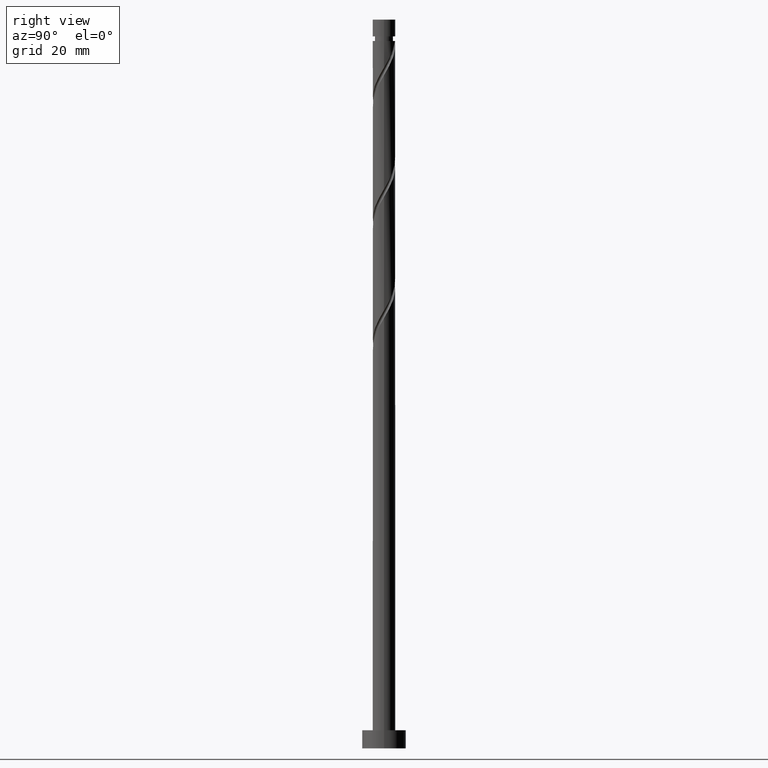
[diagram: clean part render]
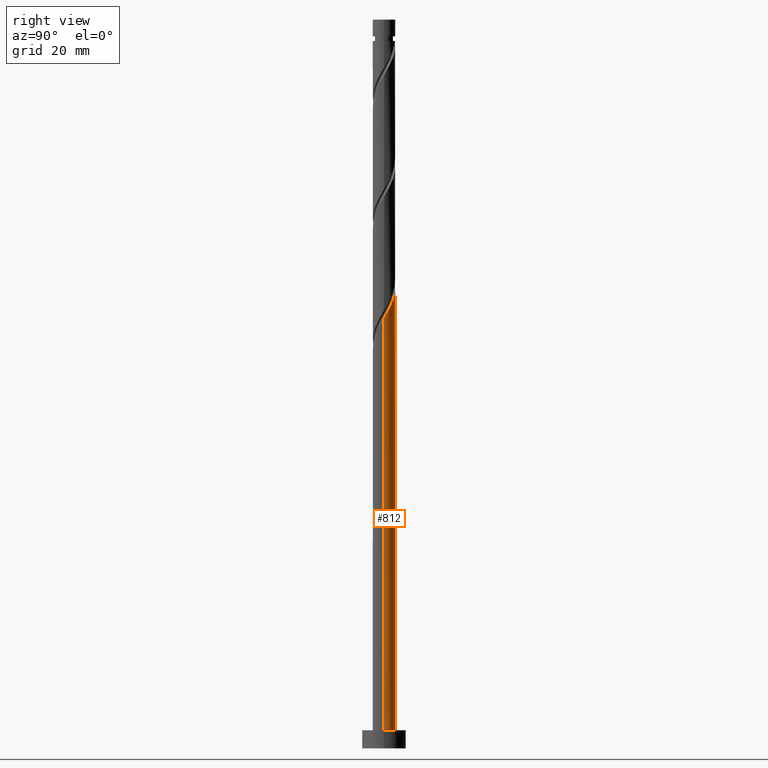
[diagram: same view with one face highlighted and labeled with its STEP entity id]
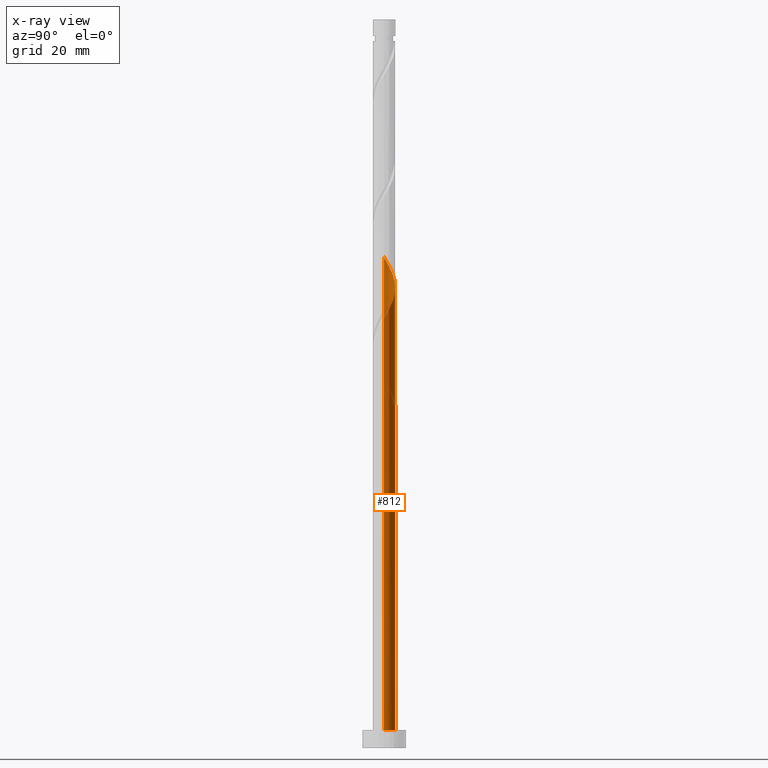
[diagram: x-ray of the same camera — body ghosted, the highlighted face saturated]
A machine part, right view. The second image highlights one B-rep face of the part: STEP entity #812.
The next image is the same camera in x-ray: the body ghosted, the highlighted face saturated — about 0% of this face is hidden behind the body in this view.
In plain terms, the highlighted cylindrical surface (edge-blend (fillet) strip) has radius 3.1 mm, axis along (-0, -0, -1).
Its self-contained STEP definition (entity closure, byte-faithful):
#6 = CARTESIAN_POINT ( 'NONE',  ( 0.000000000000000000, 0.000000000000000000, 94.13894917017734087 ) ) ;
#25 = CARTESIAN_POINT ( 'NONE',  ( 2.322539071194076765, 2.053244326128037311, 121.9167269479550839 ) ) ;
#42 = ORIENTED_EDGE ( 'NONE', *, *, #212, .F. ) ;
#49 = DIRECTION ( 'NONE',  ( 1.000000000000000000, 0.000000000000000000, 0.000000000000000000 ) ) ;
#78 = CARTESIAN_POINT ( 'NONE',  ( -2.939431282200180906, 0.9847556738719646097, 133.0278380590661982 ) ) ;
#86 = CARTESIAN_POINT ( 'NONE',  ( -2.939431282200180906, 0.9847556738719646097, 99.69450472573285538 ) ) ;
#133 = EDGE_CURVE ( 'NONE', #692, #371, #1568, .T. ) ;
#156 = CARTESIAN_POINT ( 'NONE',  ( -2.774819207282405831, 1.382164377668820832, 101.0833936146217553 ) ) ;
#180 = CARTESIAN_POINT ( 'NONE',  ( -0.6168922110061045849, 3.038000000000002920, 94.13894917017731245 ) ) ;
#183 = CARTESIAN_POINT ( 'NONE',  ( 0.1904201403740989340, 3.094146113249975460, 126.0833936146217553 ) ) ;
#207 = CARTESIAN_POINT ( 'NONE',  ( 1.711981735581154407, 2.584399066908313003, 123.3056158368439839 ) ) ;
#212 = EDGE_CURVE ( 'NONE', #703, #1073, #890, .T. ) ;
#215 = CARTESIAN_POINT ( 'NONE',  ( -0.6168922110061045849, 3.038000000000003364, 127.4722825035106695 ) ) ;
#230 = ORIENTED_EDGE ( 'NONE', *, *, #844, .F. ) ;
#252 = CARTESIAN_POINT ( 'NONE',  ( 3.100000000000000089, 3.796405077356794918E-16, 200.0000000000000000 ) ) ;
#256 = LINE ( 'NONE', #1370, #1614 ) ;
#291 = EDGE_CURVE ( 'NONE', #354, #1160, #814, .T. ) ;
#294 = CARTESIAN_POINT ( 'NONE',  ( 0.000000000000000000, 0.000000000000000000, 200.0000000000000000 ) ) ;
#305 = CARTESIAN_POINT ( 'NONE',  ( -2.592853814885977215, 1.747476256661027572, 100.3889491701773409 ) ) ;
#315 = DIRECTION ( 'NONE',  ( 0.000000000000000000, 0.000000000000000000, 1.000000000000000000 ) ) ;
#322 = CARTESIAN_POINT ( 'NONE',  ( -1.016852498676614758, 2.956784599678839776, 128.1667269479551123 ) ) ;
#337 = CARTESIAN_POINT ( 'NONE',  ( 0.9847556738719657199, 2.939431282200179574, 124.6945047257328696 ) ) ;
#348 = CARTESIAN_POINT ( 'NONE',  ( 1.371739143660140714, 2.809785738221576512, 124.0000602812884267 ) ) ;
#350 = CARTESIAN_POINT ( 'NONE',  ( -2.053244326128039088, 2.322539071194074545, 96.91672694795509813 ) ) ;
#354 = VERTEX_POINT ( 'NONE', #1210 ) ;
#363 = EDGE_CURVE ( 'NONE', #703, #1160, #731, .T. ) ;
#371 = VERTEX_POINT ( 'NONE', #1625 ) ;
#387 = DIRECTION ( 'NONE',  ( -0.000000000000000000, -0.000000000000000000, -1.000000000000000000 ) ) ;
#406 = CARTESIAN_POINT ( 'NONE',  ( -0.1904201403740956866, 3.094146113249972796, 95.52783805906619818 ) ) ;
#416 = AXIS2_PLACEMENT_3D ( 'NONE', #6, #541, #1503 ) ;
#444 = CARTESIAN_POINT ( 'NONE',  ( 0.2169319233355964660, 3.119215400321164733, 94.83339361462178374 ) ) ;
#460 = ORIENTED_EDGE ( 'NONE', *, *, #133, .T. ) ;
#467 = CARTESIAN_POINT ( 'NONE',  ( -0.6168922110061045849, 3.038000000000002920, 94.13894917017731245 ) ) ;
#471 = CARTESIAN_POINT ( 'NONE',  ( -1.747476256661028904, 2.592853814885981656, 129.5556158368439981 ) ) ;
#516 = LINE ( 'NONE', #1095, #1024 ) ;
#538 = CARTESIAN_POINT ( 'NONE',  ( 3.100000000000005418, 0.3115617227303423276, 118.6088088841564741 ) ) ;
#541 = DIRECTION ( 'NONE',  ( -2.485070895983532371E-30, -1.119176436114070574E-14, -1.000000000000000000 ) ) ;
#559 = CARTESIAN_POINT ( 'NONE',  ( 2.956784599678840664, 1.016852498676613648, 119.8333936146217695 ) ) ;
#585 = CARTESIAN_POINT ( 'NONE',  ( -2.809785738221577400, 1.371739143660139382, 132.3333936146217695 ) ) ;
#615 = CARTESIAN_POINT ( 'NONE',  ( -3.069076826178783968, 0.5977722040837893935, 100.3889491701773267 ) ) ;
#627 = CARTESIAN_POINT ( 'NONE',  ( -3.100000000000002309, -1.958945762114218998E-15, 101.4087158483005453 ) ) ;
#676 = DIRECTION ( 'NONE',  ( -0.000000000000000000, -0.000000000000000000, -1.000000000000000000 ) ) ;
#689 = CARTESIAN_POINT ( 'NONE',  ( -1.371739143660136939, 2.809785738221574292, 97.61117139239954099 ) ) ;
#692 = VERTEX_POINT ( 'NONE', #1126 ) ;
#700 = CARTESIAN_POINT ( 'NONE',  ( -2.322539071194071880, 2.053244326128036867, 99.69450472573288380 ) ) ;
#703 = VERTEX_POINT ( 'NONE', #180 ) ;
#710 = VERTEX_POINT ( 'NONE', #1004 ) ;
#723 = CARTESIAN_POINT ( 'NONE',  ( -0.2169319233355931631, 3.119215400321167841, 126.7778380590662266 ) ) ;
#726 = ORIENTED_EDGE ( 'NONE', *, *, #1336, .T. ) ;
#731 = CIRCLE ( 'NONE', #416, 3.100000000000000089 ) ;
#745 = CARTESIAN_POINT ( 'NONE',  ( -1.016852498676614758, 2.956784599678839776, 94.83339361462175532 ) ) ;
#750 = CARTESIAN_POINT ( 'NONE',  ( -2.809785738221577400, 1.371739143660139382, 99.00006028128841251 ) ) ;
#755 = CARTESIAN_POINT ( 'NONE',  ( -3.094146113249975460, 0.1904201403740971021, 134.4167269479550555 ) ) ;
#781 = EDGE_CURVE ( 'NONE', #710, #354, #516, .T. ) ;
#798 = LINE ( 'NONE', #252, #941 ) ;
#812 = ADVANCED_FACE ( 'NONE', ( #1477 ), #1468, .T. ) ;
#814 =( BOUNDED_CURVE ( )  B_SPLINE_CURVE ( 2, ( #1083, #1612, #1369, #956, #156, #305, #700, #1241, #1122, #689, #1476, #1747, #406, #444, #1511 ),
 .UNSPECIFIED., .F., .T. ) 
 B_SPLINE_CURVE_WITH_KNOTS ( ( 3, 2, 2, 2, 2, 2, 2, 3 ),
 ( 0.9295317669814463502, 0.9375000000000000000, 0.9479166666666666297, 0.9583333333333333703, 0.9687500000000000000, 0.9791666666666666297, 0.9895833333333333703, 1.000000000000000000 ),
 .UNSPECIFIED. ) 
 CURVE ( )  GEOMETRIC_REPRESENTATION_ITEM ( )  RATIONAL_B_SPLINE_CURVE ( ( 0.9062941362546446111, 0.9031415850403490264, 0.9090909090909243817, 0.9013135103398428605, 0.9090909090909243817, 0.9013135103398428605, 0.9090909090909243817, 0.9013135103398428605, 0.9090909090909243817, 0.9013135103398428605, 0.9090909090909243817, 0.9013135103398428605, 0.9090909090909243817, 0.9013135103398428605, 0.9090909090909243817 ) ) 
 REPRESENTATION_ITEM ( '' )  );
#844 = EDGE_CURVE ( 'NONE', #1073, #371, #256, .T. ) ;
#856 = CARTESIAN_POINT ( 'NONE',  ( -2.359012395595050826, 2.052224327502169654, 130.9445047257328838 ) ) ;
#879 = EDGE_LOOP ( 'NONE', ( #994, #726, #460, #230, #42, #916, #1268, #1521 ) ) ;
#883 = CARTESIAN_POINT ( 'NONE',  ( 2.052224327502171430, 2.359012395595048162, 122.6111713923995410 ) ) ;
#890 =( BOUNDED_CURVE ( )  B_SPLINE_CURVE ( 2, ( #467, #745, #1289, #1156, #350, #893, #992, #750, #86, #615, #1668, #1431, #1060 ),
 .UNSPECIFIED., .F., .T. ) 
 B_SPLINE_CURVE_WITH_KNOTS ( ( 3, 2, 2, 2, 2, 2, 3 ),
 ( 0.000000000000000000, 0.01041666666666662966, 0.02083333333333337034, 0.03125000000000000000, 0.04166666666666662966, 0.05208333333333337034, 0.05453176698144607260 ),
 .UNSPECIFIED. ) 
 CURVE ( )  GEOMETRIC_REPRESENTATION_ITEM ( )  RATIONAL_B_SPLINE_CURVE ( ( 0.9090909090909298218, 0.9013135103398480785, 0.9090909090909298218, 0.9013135103398480785, 0.9090909090909298218, 0.9013135103398480785, 0.9090909090909298218, 0.9013135103398480785, 0.9090909090909298218, 0.9013135103398480785, 0.9090909090909298218, 0.9072628343904236559, 0.9062941362546501622 ) ) 
 REPRESENTATION_ITEM ( '' )  );
#893 = CARTESIAN_POINT ( 'NONE',  ( -2.359012395595050826, 2.052224327502169654, 97.61117139239954099 ) ) ;
#916 = ORIENTED_EDGE ( 'NONE', *, *, #363, .T. ) ;
#941 = VECTOR ( 'NONE', #1337, 1000.000000000000000 ) ;
#956 = CARTESIAN_POINT ( 'NONE',  ( -2.956784599678835779, 1.016852498676613870, 101.7778380590662266 ) ) ;
#992 = CARTESIAN_POINT ( 'NONE',  ( -2.584399066908313447, 1.711981735581154185, 98.30561583684395544 ) ) ;
#994 = ORIENTED_EDGE ( 'NONE', *, *, #1154, .F. ) ;
#998 = CARTESIAN_POINT ( 'NONE',  ( 0.5977722040837911699, 3.069076826178783524, 125.3889491701772840 ) ) ;
#1004 = CARTESIAN_POINT ( 'NONE',  ( -3.100000000000002309, -1.958945762114218998E-15, 134.7420491816338597 ) ) ;
#1024 = VECTOR ( 'NONE', #387, 1000.000000000000000 ) ;
#1047 = CARTESIAN_POINT ( 'NONE',  ( -3.100000000000002309, -1.958945762114218998E-15, 134.7420491816338597 ) ) ;
#1060 = CARTESIAN_POINT ( 'NONE',  ( -3.100000000000002309, -1.958945762114218998E-15, 101.4087158483005453 ) ) ;
#1073 = VERTEX_POINT ( 'NONE', #627 ) ;
#1083 = CARTESIAN_POINT ( 'NONE',  ( -3.100000000000000977, -5.174009417492547968E-15, 103.5358491587207368 ) ) ;
#1090 = CARTESIAN_POINT ( 'NONE',  ( 3.100000000000002309, 0.000000000000000000, 118.0753825149672167 ) ) ;
#1095 = CARTESIAN_POINT ( 'NONE',  ( -3.100000000000000089, 0.000000000000000000, 200.0000000000000000 ) ) ;
#1112 = CARTESIAN_POINT ( 'NONE',  ( 2.592853814885982100, 1.747476256661027350, 121.2222825035106553 ) ) ;
#1122 = CARTESIAN_POINT ( 'NONE',  ( -1.711981735581151964, 2.584399066908310783, 98.30561583684398386 ) ) ;
#1123 = CARTESIAN_POINT ( 'NONE',  ( 0.000000000000000000, 0.000000000000000000, 5.000000000000000000 ) ) ;
#1126 = CARTESIAN_POINT ( 'NONE',  ( 3.100000000000000089, 3.796405077356794918E-16, 5.000000000000000000 ) ) ;
#1154 = EDGE_CURVE ( 'NONE', #1670, #710, #1340, .T. ) ;
#1156 = CARTESIAN_POINT ( 'NONE',  ( -1.747476256661028904, 2.592853814885981656, 96.22228250351064105 ) ) ;
#1160 = VERTEX_POINT ( 'NONE', #1740 ) ;
#1192 = CARTESIAN_POINT ( 'NONE',  ( 3.100000000000002309, 0.000000000000000000, 118.0753825149672167 ) ) ;
#1200 = DIRECTION ( 'NONE',  ( -0.000000000000000000, -0.000000000000000000, -1.000000000000000000 ) ) ;
#1210 = CARTESIAN_POINT ( 'NONE',  ( -3.100000000000000977, -5.174009417492547968E-15, 103.5358491587207368 ) ) ;
#1241 = CARTESIAN_POINT ( 'NONE',  ( -2.052224327502166545, 2.359012395595047717, 99.00006028128842672 ) ) ;
#1268 = ORIENTED_EDGE ( 'NONE', *, *, #291, .F. ) ;
#1270 = CARTESIAN_POINT ( 'NONE',  ( -1.382164377668821498, 2.774819207282409383, 128.8611713923995410 ) ) ;
#1276 = CARTESIAN_POINT ( 'NONE',  ( -3.069076826178783968, 0.5977722040837893935, 133.7222825035106268 ) ) ;
#1286 = CARTESIAN_POINT ( 'NONE',  ( -2.584399066908313447, 1.711981735581154185, 131.6389491701772840 ) ) ;
#1289 = CARTESIAN_POINT ( 'NONE',  ( -1.382164377668821498, 2.774819207282409383, 95.52783805906618397 ) ) ;
#1292 = CARTESIAN_POINT ( 'NONE',  ( -2.053244326128039088, 2.322539071194074545, 130.2500602812883983 ) ) ;
#1309 = CARTESIAN_POINT ( 'NONE',  ( -3.100000000000002309, 0.09530005013879995490, 134.5788854936056964 ) ) ;
#1336 = EDGE_CURVE ( 'NONE', #1670, #692, #798, .T. ) ;
#1337 = DIRECTION ( 'NONE',  ( -0.000000000000000000, -0.000000000000000000, -1.000000000000000000 ) ) ;
#1340 =( BOUNDED_CURVE ( )  B_SPLINE_CURVE ( 2, ( #1090, #538, #1621, #559, #1366, #1112, #25, #883, #207, #348, #337, #998, #183, #723, #215, #322, #1270, #471, #1292, #856, #1286, #585, #78, #1276, #755, #1309, #1047 ),
 .UNSPECIFIED., .F., .T. ) 
 B_SPLINE_CURVE_WITH_KNOTS ( ( 3, 2, 2, 2, 2, 2, 2, 2, 2, 2, 2, 2, 2, 3 ),
 ( 0.1795317669814460171, 0.1875000000000000000, 0.1979166666666666297, 0.2083333333333333703, 0.2187500000000000000, 0.2291666666666666297, 0.2395833333333333703, 0.2500000000000000000, 0.2604166666666666297, 0.2708333333333333703, 0.2812500000000000000, 0.2916666666666666297, 0.3020833333333333703, 0.3045317669814460171 ),
 .UNSPECIFIED. ) 
 CURVE ( )  GEOMETRIC_REPRESENTATION_ITEM ( )  RATIONAL_B_SPLINE_CURVE ( ( 0.9062941362546502733, 0.9031415850403540224, 0.9090909090909298218, 0.9013135103398480785, 0.9090909090909298218, 0.9013135103398480785, 0.9090909090909298218, 0.9013135103398480785, 0.9090909090909298218, 0.9013135103398480785, 0.9090909090909298218, 0.9013135103398480785, 0.9090909090909298218, 0.9013135103398480785, 0.9090909090909298218, 0.9013135103398480785, 0.9090909090909298218, 0.9013135103398480785, 0.9090909090909298218, 0.9013135103398480785, 0.9090909090909298218, 0.9013135103398480785, 0.9090909090909298218, 0.9013135103398480785, 0.9090909090909298218, 0.9072628343904237669, 0.9062941362546502733 ) ) 
 REPRESENTATION_ITEM ( '' )  );
#1366 = CARTESIAN_POINT ( 'NONE',  ( 2.774819207282409383, 1.382164377668820165, 120.5278380590661982 ) ) ;
#1369 = CARTESIAN_POINT ( 'NONE',  ( -3.037999999999999812, 0.6168922110061053621, 102.4722825035106268 ) ) ;
#1370 = CARTESIAN_POINT ( 'NONE',  ( -3.100000000000000089, 0.000000000000000000, 200.0000000000000000 ) ) ;
#1431 = CARTESIAN_POINT ( 'NONE',  ( -3.100000000000002309, 0.09530005013879777609, 101.2455521602724104 ) ) ;
#1468 = CYLINDRICAL_SURFACE ( 'NONE', #1498, 3.100000000000000089 ) ;
#1476 = CARTESIAN_POINT ( 'NONE',  ( -0.9847556738719625002, 2.939431282200177353, 96.91672694795509813 ) ) ;
#1477 = FACE_OUTER_BOUND ( 'NONE', #879, .T. ) ;
#1484 = AXIS2_PLACEMENT_3D ( 'NONE', #1123, #315, #49 ) ;
#1498 = AXIS2_PLACEMENT_3D ( 'NONE', #294, #676, #1604 ) ;
#1503 = DIRECTION ( 'NONE',  ( 0.000000000000000000, 1.000000000000000000, -1.343011723336882922E-14 ) ) ;
#1511 = CARTESIAN_POINT ( 'NONE',  ( 0.6168922110061058062, 3.037999999999999812, 94.13894917017731245 ) ) ;
#1521 = ORIENTED_EDGE ( 'NONE', *, *, #781, .F. ) ;
#1568 = CIRCLE ( 'NONE', #1484, 3.100000000000000089 ) ;
#1604 = DIRECTION ( 'NONE',  ( -1.000000000000000000, 0.000000000000000000, 0.000000000000000000 ) ) ;
#1612 = CARTESIAN_POINT ( 'NONE',  ( -3.100000000000000977, 0.3115617227303581482, 103.0024227895314510 ) ) ;
#1614 = VECTOR ( 'NONE', #1200, 1000.000000000000000 ) ;
#1621 = CARTESIAN_POINT ( 'NONE',  ( 3.038000000000003364, 0.6168922110061046959, 119.1389491701773409 ) ) ;
#1625 = CARTESIAN_POINT ( 'NONE',  ( -3.100000000000000089, 0.000000000000000000, 5.000000000000000000 ) ) ;
#1668 = CARTESIAN_POINT ( 'NONE',  ( -3.094146113249975460, 0.1904201403740971021, 101.0833936146217553 ) ) ;
#1670 = VERTEX_POINT ( 'NONE', #1192 ) ;
#1740 = CARTESIAN_POINT ( 'NONE',  ( 0.6168922110061058062, 3.037999999999999812, 94.13894917017731245 ) ) ;
#1747 = CARTESIAN_POINT ( 'NONE',  ( -0.5977722040837880613, 3.069076826178780415, 96.22228250351066947 ) ) ;